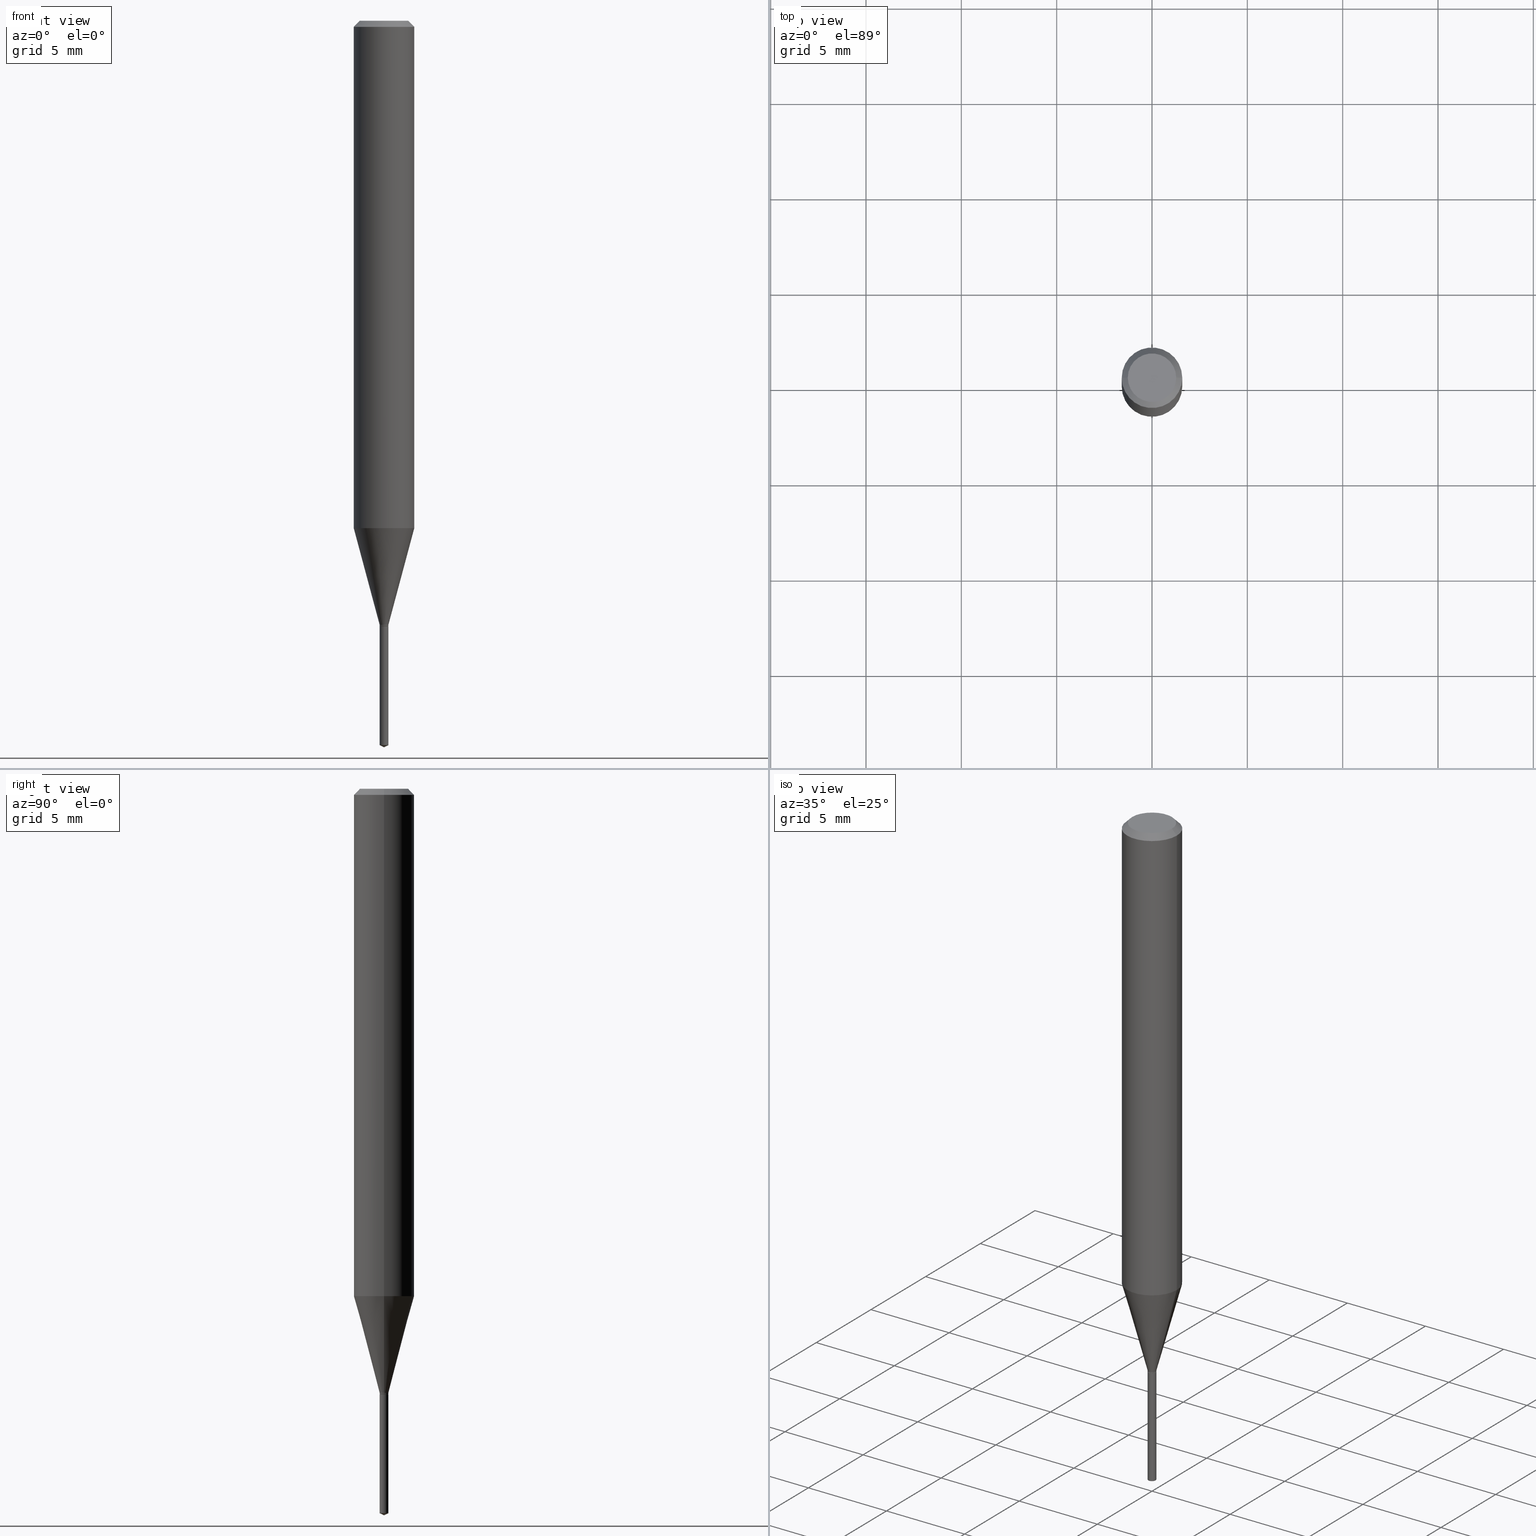
[diagram: canonical four-view strip — front | top / right | iso, engineering-drawing reading convention]
A machine part, canonical four-view strip (front | top / right | iso — engineering-drawing reading convention). The complete STEP part file that produces these views, byte-faithful:
ISO-10303-21;
HEADER;
FILE_DESCRIPTION (( 'STEP AP203' ),
    '1' );
FILE_NAME ('07288.STEP',
    '2024-04-23T20:13:42',
    ( '' ),
    ( '' ),
    'SwSTEP 2.0',
    'SolidWorks 2023',
    '' );
FILE_SCHEMA (( 'CONFIG_CONTROL_DESIGN' ));
ENDSEC;

DATA;
#1 = DIRECTION ( 'NONE',  ( -2.445468806185136877E-29, 3.491481338843145188E-15, 1.000000000000000000 ) ) ;
#2 = CARTESIAN_POINT ( 'NONE',  ( 3.056836007731421306E-29, -4.364351673553932471E-15, -1.250000000000000000 ) ) ;
#3 = APPROVAL_PERSON_ORGANIZATION ( #488, #395, #75 ) ;
#4 = CARTESIAN_POINT ( 'NONE',  ( 3.056836007731421306E-29, -4.364351673553932471E-15, -1.250000000000000000 ) ) ;
#5 = AXIS2_PLACEMENT_3D ( 'NONE', #40, #487, #441 ) ;
#6 = DIRECTION ( 'NONE',  ( -2.445468806185136597E-29, 3.491481338843145583E-15, 1.000000000000000000 ) ) ;
#7 = DIRECTION ( 'NONE',  ( -6.982962677686265133E-15, -1.000000000000000000, 0.000000000000000000 ) ) ;
#8 = ORIENTED_EDGE ( 'NONE', *, *, #24, .F. ) ;
#9 = CC_DESIGN_PERSON_AND_ORGANIZATION_ASSIGNMENT ( #287, #425, ( #81 ) ) ;
#10 = DIRECTION ( 'NONE',  ( -6.982962677686265133E-15, -1.000000000000000000, 0.000000000000000000 ) ) ;
#11 = AXIS2_PLACEMENT_3D ( 'NONE', #105, #183, #111 ) ;
#12 = ORIENTED_EDGE ( 'NONE', *, *, #159, .F. ) ;
#13 = LINE ( 'NONE', #42, #171 ) ;
#14 = ADVANCED_BREP_SHAPE_REPRESENTATION ( '07288', ( #85, #410, #437 ), #427 ) ;
#15 = PRODUCT_RELATED_PRODUCT_CATEGORY ( 'detail', '', ( #81 ) ) ;
#16 = ORIENTED_EDGE ( 'NONE', *, *, #197, .F. ) ;
#17 = CARTESIAN_POINT ( 'NONE',  ( 0.06250000000000006939, -4.364351673553921624E-16, 3.047610484872463374E-30 ) ) ;
#18 = PERSON_AND_ORGANIZATION_ROLE ( 'creator' ) ;
#19 = CARTESIAN_POINT ( 'NONE',  ( -0.06250000000000013878, -3.213709826451086703E-15, -1.047635281795065154 ) ) ;
#20 = CC_DESIGN_APPROVAL ( #301, ( #242 ) ) ;
#21 = VECTOR ( 'NONE', #94, 39.37007874015748854 ) ;
#22 = CALENDAR_DATE ( 2024, 23, 4 ) ;
#23 = ORIENTED_EDGE ( 'NONE', *, *, #24, .T. ) ;
#24 = EDGE_CURVE ( 'NONE', #99, #175, #193, .T. ) ;
#25 = ORIENTED_EDGE ( 'NONE', *, *, #118, .F. ) ;
#26 = DATE_AND_TIME ( #22, #235 ) ;
#27 = ORIENTED_EDGE ( 'NONE', *, *, #380, .T. ) ;
#28 = ORIENTED_EDGE ( 'NONE', *, *, #219, .F. ) ;
#29 = CARTESIAN_POINT ( 'NONE',  ( 2.561959401888807010E-29, -3.657799036301150108E-15, -1.047635281795065154 ) ) ;
#30 = ORIENTED_EDGE ( 'NONE', *, *, #215, .F. ) ;
#31 = VECTOR ( 'NONE', #330, 39.37007874015748854 ) ;
#32 = CONICAL_SURFACE ( 'NONE', #418, 84.42940631927278616, 1.134464013796308901 ) ;
#33 = CARTESIAN_POINT ( 'NONE',  ( 1.946643104841063088E-47, -2.779290439833033990E-33, -7.960204194457798443E-19 ) ) ;
#34 = EDGE_LOOP ( 'NONE', ( #125, #90, #27, #25 ) ) ;
#35 = DIRECTION ( 'NONE',  ( -2.445468806185136597E-29, 3.491481338843145583E-15, 1.000000000000000000 ) ) ;
#36 = EDGE_CURVE ( 'NONE', #65, #120, #333, .T. ) ;
#37 = FACE_OUTER_BOUND ( 'NONE', #128, .T. ) ;
#38 = CARTESIAN_POINT ( 'NONE',  ( -0.06250000000000006939, 4.440892098500631092E-16, -3.074334431409319267E-30 ) ) ;
#39 = ADVANCED_FACE ( 'NONE', ( #327 ), #55, .T. ) ;
#40 = CARTESIAN_POINT ( 'NONE',  ( 3.050233241954721412E-29, -4.354924673939055563E-15, -1.247300000000000075 ) ) ;
#41 = EDGE_CURVE ( 'NONE', #216, #99, #295, .T. ) ;
#42 = CARTESIAN_POINT ( 'NONE',  ( -0.009000000000000016667, 6.394884621840913516E-17, -4.427041581229423352E-31 ) ) ;
#43 = SECURITY_CLASSIFICATION ( '', '', #486 ) ;
#44 = CARTESIAN_POINT ( 'NONE',  ( 3.055613273328328505E-29, -4.362605932884510968E-15, -1.249500000000000055 ) ) ;
#45 = AXIS2_PLACEMENT_3D ( 'NONE', #398, #361, #467 ) ;
#46 = ORIENTED_EDGE ( 'NONE', *, *, #269, .F. ) ;
#47 = CARTESIAN_POINT ( 'NONE',  ( 3.657912959581434869E-29, -5.222607994353275503E-15, -1.495803231076605178 ) ) ;
#48 = EDGE_CURVE ( 'NONE', #479, #216, #210, .T. ) ;
#49 = DIRECTION ( 'NONE',  ( -2.445358220953112322E-29, 3.491639703189524906E-15, 1.000000000000000000 ) ) ;
#50 = CARTESIAN_POINT ( 'NONE',  ( 3.056836007731441415E-31, -4.364351673553961684E-17, -0.01250000000000008396 ) ) ;
#51 = AXIS2_PLACEMENT_3D ( 'NONE', #102, #130, #217 ) ;
#52 = APPLICATION_CONTEXT ( 'configuration controlled 3d designs of mechanical parts and assemblies' ) ;
#53 = DATE_AND_TIME ( #249, #221 ) ;
#54 = DIMENSIONAL_EXPONENTS ( 1.000000000000000000, 0.000000000000000000, 0.000000000000000000, 0.000000000000000000, 0.000000000000000000, 0.000000000000000000, 0.000000000000000000 ) ;
#55 = CYLINDRICAL_SURFACE ( 'NONE', #45, 0.009000000000000016667 ) ;
#56 = PERSON_AND_ORGANIZATION ( #237, #179 ) ;
#57 = DIRECTION ( 'NONE',  ( -2.445468806185136597E-29, 3.491481338843145583E-15, 1.000000000000000000 ) ) ;
#58 = EDGE_LOOP ( 'NONE', ( #356, #475, #358, #251 ) ) ;
#59 = ORIENTED_EDGE ( 'NONE', *, *, #376, .F. ) ;
#60 = DIRECTION ( 'NONE',  ( -2.445468806185136597E-29, 3.491481338843145583E-15, 1.000000000000000000 ) ) ;
#61 = ORIENTED_EDGE ( 'NONE', *, *, #389, .F. ) ;
#62 = AXIS2_PLACEMENT_3D ( 'NONE', #4, #353, #311 ) ;
#63 = PERSON_AND_ORGANIZATION ( #237, #179 ) ;
#64 = EDGE_LOOP ( 'NONE', ( #46, #354 ) ) ;
#65 = VERTEX_POINT ( 'NONE', #166 ) ;
#66 = FACE_OUTER_BOUND ( 'NONE', #411, .T. ) ;
#67 = ORIENTED_EDGE ( 'NONE', *, *, #48, .T. ) ;
#68 = DIRECTION ( 'NONE',  ( -2.445358220953112322E-29, 3.491639703189524906E-15, 1.000000000000000000 ) ) ;
#69 = EDGE_CURVE ( 'NONE', #123, #99, #440, .T. ) ;
#70 = APPROVAL_DATE_TIME ( #340, #301 ) ;
#71 = APPROVAL_PERSON_ORGANIZATION ( #63, #301, #140 ) ;
#72 = CARTESIAN_POINT ( 'NONE',  ( 6.394884621844560765E-17, 0.008999999999994779537, -1.495803231076605178 ) ) ;
#73 = PERSON_AND_ORGANIZATION_ROLE ( 'design_supplier' ) ;
#74 = CARTESIAN_POINT ( 'NONE',  ( 0.008499999999999998876, -4.423706856314265170E-15, -1.250000000000000000 ) ) ;
#75 = APPROVAL_ROLE ( '' ) ;
#76 = CARTESIAN_POINT ( 'NONE',  ( 0.008499999999999998876, -4.423706856314265170E-15, -1.250000000000000000 ) ) ;
#77 = ORIENTED_EDGE ( 'NONE', *, *, #176, .F. ) ;
#78 = CALENDAR_DATE ( 2024, 23, 4 ) ;
#79 = AXIS2_PLACEMENT_3D ( 'NONE', #152, #35, #268 ) ;
#80 = CARTESIAN_POINT ( 'NONE',  ( 3.893286209682126177E-47, -5.558580879666067980E-33, -1.592040838891559689E-18 ) ) ;
#81 = PRODUCT ( '07288', '07288', '', ( #438 ) ) ;
#82 = EDGE_CURVE ( 'NONE', #216, #120, #154, .T. ) ;
#83 = FACE_OUTER_BOUND ( 'NONE', #145, .T. ) ;
#84 = DIRECTION ( 'NONE',  ( 6.439704144417007476E-15, 0.9063077870366490485, 0.4226182617407009956 ) ) ;
#85 = MANIFOLD_SOLID_BREP ( 'Body-Move/Copy2[1]', #367 ) ;
#86 = FACE_OUTER_BOUND ( 'NONE', #212, .T. ) ;
#87 = CIRCLE ( 'NONE', #383, 0.008999999999999999320 ) ;
#88 = CARTESIAN_POINT ( 'NONE',  ( 0.009000000000000016667, -6.284666409917651971E-17, 4.388559098216350166E-31 ) ) ;
#89 = CARTESIAN_POINT ( 'NONE',  ( 3.056836007731421306E-29, -4.364351673553932471E-15, -1.250000000000000000 ) ) ;
#90 = ORIENTED_EDGE ( 'NONE', *, *, #169, .T. ) ;
#91 = VECTOR ( 'NONE', #432, 39.37007874015748854 ) ;
#92 = CARTESIAN_POINT ( 'NONE',  ( 3.056836007731441415E-31, -4.364351673553961684E-17, -0.01250000000000008396 ) ) ;
#93 = ORIENTED_EDGE ( 'NONE', *, *, #349, .T. ) ;
#94 = DIRECTION ( 'NONE',  ( -6.328713451373352024E-15, -0.9063077870366461619, 0.4226182617407073239 ) ) ;
#95 = DIRECTION ( 'NONE',  ( 1.000000000000000000, -6.982962677686266711E-15, 0.000000000000000000 ) ) ;
#96 = ORIENTED_EDGE ( 'NONE', *, *, #106, .F. ) ;
#97 = DIRECTION ( 'NONE',  ( 0.000000000000000000, 0.000000000000000000, 1.000000000000000000 ) ) ;
#98 = ADVANCED_FACE ( 'NONE', ( #404 ), #292, .T. ) ;
#99 = VERTEX_POINT ( 'NONE', #131 ) ;
#100 = APPROVAL_PERSON_ORGANIZATION ( #320, #355, #393 ) ;
#101 = ORIENTED_EDGE ( 'NONE', *, *, #352, .T. ) ;
#102 = CARTESIAN_POINT ( 'NONE',  ( 2.561959401888807010E-29, -3.657799036301150108E-15, -1.047635281795065154 ) ) ;
#103 = ORIENTED_EDGE ( 'NONE', *, *, #247, .F. ) ;
#104 = DATE_AND_TIME ( #414, #192 ) ;
#105 = CARTESIAN_POINT ( 'NONE',  ( 3.893286209682126177E-47, -5.558580879666067980E-33, -1.592040838891559689E-18 ) ) ;
#106 = EDGE_CURVE ( 'NONE', #282, #357, #286, .T. ) ;
#107 = DIRECTION ( 'NONE',  ( -1.000000000000000000, 6.982962677686266711E-15, 0.000000000000000000 ) ) ;
#108 = ORIENTED_EDGE ( 'NONE', *, *, #69, .F. ) ;
#109 = AXIS2_PLACEMENT_3D ( 'NONE', #50, #122, #276 ) ;
#110 = SHAPE_DEFINITION_REPRESENTATION ( #386, #14 ) ;
#111 = DIRECTION ( 'NONE',  ( 1.000000000000000000, -6.982962677686265922E-15, 4.875957971899673662E-29 ) ) ;
#112 = CARTESIAN_POINT ( 'NONE',  ( 0.06250000000000013878, -4.094234203656543355E-15, -1.047635281795065154 ) ) ;
#113 = PLANE ( 'NONE',  #429 ) ;
#114 = CLOSED_SHELL ( 'NONE', ( #329, #254, #98, #201, #39, #439, #308, #459, #339, #135, #313, #379 ) ) ;
#115 = CIRCLE ( 'NONE', #5, 0.009000000000000016667 ) ;
#116 = DIRECTION ( 'NONE',  ( -2.445468806185136597E-29, 3.491481338843145583E-15, 1.000000000000000000 ) ) ;
#117 = CARTESIAN_POINT ( 'NONE',  ( -0.009000000000000016667, -4.294816457193374586E-15, -1.249500000000000055 ) ) ;
#118 = EDGE_CURVE ( 'NONE', #65, #479, #149, .T. ) ;
#119 = PLANE ( 'NONE',  #338 ) ;
#120 = VERTEX_POINT ( 'NONE', #19 ) ;
#121 = CC_DESIGN_APPROVAL ( #355, ( #264 ) ) ;
#122 = DIRECTION ( 'NONE',  ( 2.445468806185136597E-29, -3.491481338843145583E-15, -1.000000000000000000 ) ) ;
#123 = VERTEX_POINT ( 'NONE', #170 ) ;
#124 = CYLINDRICAL_SURFACE ( 'NONE', #194, 0.008999999999999999320 ) ;
#125 = ORIENTED_EDGE ( 'NONE', *, *, #352, .F. ) ;
#126 = APPLICATION_CONTEXT ( 'configuration controlled 3d designs of mechanical parts and assemblies' ) ;
#127 = CARTESIAN_POINT ( 'NONE',  ( 6.394884621843956793E-17, 0.008999999999995634756, -1.250000000000000000 ) ) ;
#128 = EDGE_LOOP ( 'NONE', ( #138, #163, #402, #360 ) ) ;
#129 = ADVANCED_FACE ( 'NONE', ( #324 ), #32, .T. ) ;
#130 = DIRECTION ( 'NONE',  ( -2.445468806185136597E-29, 3.491481338843145583E-15, 1.000000000000000000 ) ) ;
#131 = CARTESIAN_POINT ( 'NONE',  ( 0.06250000000000000000, -4.800786840909313294E-16, -0.01250000000000008396 ) ) ;
#132 = AXIS2_PLACEMENT_3D ( 'NONE', #453, #224, #370 ) ;
#133 = DIRECTION ( 'NONE',  ( 1.000000000000000000, -6.982962677686266711E-15, 4.876176775795935793E-29 ) ) ;
#134 = DIRECTION ( 'NONE',  ( -2.445468806185136877E-29, 3.491481338843145188E-15, 1.000000000000000000 ) ) ;
#135 = ADVANCED_FACE ( 'NONE', ( #261 ), #113, .F. ) ;
#136 = EDGE_CURVE ( 'NONE', #288, #252, #375, .T. ) ;
#137 =( NAMED_UNIT ( * ) SI_UNIT ( $, .STERADIAN. ) SOLID_ANGLE_UNIT ( ) );
#138 = ORIENTED_EDGE ( 'NONE', *, *, #176, .T. ) ;
#139 = EDGE_LOOP ( 'NONE', ( #401, #93 ) ) ;
#140 = APPROVAL_ROLE ( '' ) ;
#141 = CARTESIAN_POINT ( 'NONE',  ( 0.009000000000000016667, -4.417771338038232847E-15, -1.247300000000000075 ) ) ;
#142 = VECTOR ( 'NONE', #239, 39.37007874015748143 ) ;
#143 = AXIS2_PLACEMENT_3D ( 'NONE', #250, #57, #207 ) ;
#144 = CARTESIAN_POINT ( 'NONE',  ( 3.668037331429668062E-29, -5.237459554784286570E-15, -1.500000000000000222 ) ) ;
#145 = EDGE_LOOP ( 'NONE', ( #61, #184, #434 ) ) ;
#146 = LINE ( 'NONE', #74, #284 ) ;
#147 = CARTESIAN_POINT ( 'NONE',  ( 3.050233241954721412E-29, -4.354924673939055563E-15, -1.247300000000000075 ) ) ;
#148 = LOCAL_TIME ( 16, 13, 42.00000000000000000, #480 ) ;
#149 = CIRCLE ( 'NONE', #143, 0.009000000000000016667 ) ;
#150 = LINE ( 'NONE', #226, #296 ) ;
#151 = DATE_TIME_ROLE ( 'classification_date' ) ;
#152 = CARTESIAN_POINT ( 'NONE',  ( 3.055613273328328505E-29, -4.362605932884510968E-15, -1.249500000000000055 ) ) ;
#153 = DIRECTION ( 'NONE',  ( -2.445358220953112322E-29, 3.491639703189524906E-15, 1.000000000000000000 ) ) ;
#154 = CIRCLE ( 'NONE', #470, 0.06250000000000012490 ) ;
#155 = CIRCLE ( 'NONE', #132, 0.008499999999999998876 ) ;
#156 = FACE_OUTER_BOUND ( 'NONE', #64, .T. ) ;
#157 = DIRECTION ( 'NONE',  ( -2.445468806185136597E-29, 3.491481338843145583E-15, 1.000000000000000000 ) ) ;
#158 = CARTESIAN_POINT ( 'NONE',  ( 6.394884621844563230E-17, 0.008999999999995636490, -1.250000000000000000 ) ) ;
#159 = EDGE_CURVE ( 'NONE', #123, #382, #256, .T. ) ;
#160 = CARTESIAN_POINT ( 'NONE',  ( 3.668316218764602717E-29, -5.237063643918339248E-15, -1.500000000000000222 ) ) ;
#161 = ORIENTED_EDGE ( 'NONE', *, *, #169, .F. ) ;
#162 = EDGE_LOOP ( 'NONE', ( #279, #174, #8, #426 ) ) ;
#163 = ORIENTED_EDGE ( 'NONE', *, *, #36, .T. ) ;
#164 = APPROVAL_DATE_TIME ( #53, #355 ) ;
#165 = VERTEX_POINT ( 'NONE', #304 ) ;
#166 = CARTESIAN_POINT ( 'NONE',  ( -0.009000000000000016667, -4.294816457193374586E-15, -1.247300000000000075 ) ) ;
#167 =( LENGTH_UNIT ( ) NAMED_UNIT ( * ) SI_UNIT ( $, .METRE. ) );
#168 = VECTOR ( 'NONE', #84, 39.37007874015748854 ) ;
#169 = EDGE_CURVE ( 'NONE', #363, #165, #230, .T. ) ;
#170 = CARTESIAN_POINT ( 'NONE',  ( 0.04999999999999999584, -4.077247707424184705E-16, -1.592040838888913461E-18 ) ) ;
#171 = VECTOR ( 'NONE', #238, 39.37007874015748143 ) ;
#172 = DIRECTION ( 'NONE',  ( -2.445468806185136597E-29, 3.491481338843145583E-15, 1.000000000000000000 ) ) ;
#173 = EDGE_LOOP ( 'NONE', ( #466, #394, #464, #443 ) ) ;
#174 = ORIENTED_EDGE ( 'NONE', *, *, #290, .T. ) ;
#175 = VERTEX_POINT ( 'NONE', #343 ) ;
#176 = EDGE_CURVE ( 'NONE', #479, #65, #115, .T. ) ;
#177 = PERSON_AND_ORGANIZATION ( #237, #179 ) ;
#178 = DIRECTION ( 'NONE',  ( 0.7071067811865453523, -7.319954787623248157E-15, -0.7071067811865496822 ) ) ;
#179 = ORGANIZATION ( 'UNSPECIFIED', 'UNSPECIFIED', '' ) ;
#180 = EDGE_LOOP ( 'NONE', ( #96, #477, #28 ) ) ;
#181 = AXIS2_PLACEMENT_3D ( 'NONE', #368, #182, #228 ) ;
#182 = DIRECTION ( 'NONE',  ( -2.445358220953112322E-29, 3.491639703189524906E-15, 1.000000000000000000 ) ) ;
#183 = DIRECTION ( 'NONE',  ( -2.445468806185136597E-29, 3.491481338843145583E-15, 1.000000000000000000 ) ) ;
#184 = ORIENTED_EDGE ( 'NONE', *, *, #106, .T. ) ;
#185 = COORDINATED_UNIVERSAL_TIME_OFFSET ( 5, 0, .BEHIND. ) ;
#186 = DIRECTION ( 'NONE',  ( -0.7071067811866320607, 7.493145998870660238E-15, 0.7071067811864629737 ) ) ;
#187 = VECTOR ( 'NONE', #385, 39.37007874015748143 ) ;
#188 = DIRECTION ( 'NONE',  ( 1.000000000000000000, -6.982962677686265922E-15, 4.875957971899673662E-29 ) ) ;
#189 = CARTESIAN_POINT ( 'NONE',  ( -6.284666409914582809E-17, -0.009000000000004363884, -1.250000000000000000 ) ) ;
#190 = CC_DESIGN_DATE_AND_TIME_ASSIGNMENT ( #26, #253, ( #264 ) ) ;
#191 = CARTESIAN_POINT ( 'NONE',  ( 0.000000000000000000, 0.000000000000000000, 0.000000000000000000 ) ) ;
#192 = LOCAL_TIME ( 16, 13, 42.00000000000000000, #185 ) ;
#193 = CIRCLE ( 'NONE', #455, 0.06250000000000000000 ) ;
#194 = AXIS2_PLACEMENT_3D ( 'NONE', #89, #241, #7 ) ;
#195 = CARTESIAN_POINT ( 'NONE',  ( -9.260577014384575703E-28, 1.322288684474803865E-13, 37.87007874015748143 ) ) ;
#196 = CARTESIAN_POINT ( 'NONE',  ( -0.06250000000000000000, 3.927916506198520587E-16, -0.01250000000000008396 ) ) ;
#197 = EDGE_CURVE ( 'NONE', #209, #371, #448, .T. ) ;
#198 = ORIENTED_EDGE ( 'NONE', *, *, #376, .T. ) ;
#199 = CARTESIAN_POINT ( 'NONE',  ( -0.04999999999999999584, 3.709698922520826725E-16, -1.592040838894077649E-18 ) ) ;
#200 = ORIENTED_EDGE ( 'NONE', *, *, #159, .T. ) ;
#201 = ADVANCED_FACE ( 'NONE', ( #37 ), #346, .T. ) ;
#202 = CARTESIAN_POINT ( 'NONE',  ( 3.050233241954721412E-29, -4.354924673939055563E-15, -1.247300000000000075 ) ) ;
#203 = AXIS2_PLACEMENT_3D ( 'NONE', #80, #449, #188 ) ;
#204 = ORIENTED_EDGE ( 'NONE', *, *, #206, .T. ) ;
#205 = ORIENTED_EDGE ( 'NONE', *, *, #36, .F. ) ;
#206 = EDGE_CURVE ( 'NONE', #382, #123, #390, .T. ) ;
#207 = DIRECTION ( 'NONE',  ( 1.000000000000000000, -6.982962677686320353E-15, 0.000000000000000000 ) ) ;
#208 = CARTESIAN_POINT ( 'NONE',  ( 0.000000000000000000, 0.000000000000000000, 0.000000000000000000 ) ) ;
#209 = VERTEX_POINT ( 'NONE', #189 ) ;
#210 = LINE ( 'NONE', #141, #91 ) ;
#211 = CONICAL_SURFACE ( 'NONE', #369, 0.06250000000000000000, 0.7853981633974452814 ) ;
#212 = EDGE_LOOP ( 'NONE', ( #289, #428, #16, #30 ) ) ;
#213 = APPROVAL_STATUS ( 'not_yet_approved' ) ;
#214 = EDGE_LOOP ( 'NONE', ( #12, #300, #23, #59 ) ) ;
#215 = EDGE_CURVE ( 'NONE', #357, #209, #302, .T. ) ;
#216 = VERTEX_POINT ( 'NONE', #112 ) ;
#217 = DIRECTION ( 'NONE',  ( 1.000000000000000000, -6.982962677686264344E-15, 0.000000000000000000 ) ) ;
#218 = DIRECTION ( 'NONE',  ( -2.445468806185136597E-29, 3.491481338843145583E-15, 1.000000000000000000 ) ) ;
#219 = EDGE_CURVE ( 'NONE', #357, #244, #245, .T. ) ;
#220 = FACE_OUTER_BOUND ( 'NONE', #173, .T. ) ;
#221 = LOCAL_TIME ( 16, 13, 42.00000000000000000, #433 ) ;
#222 = VECTOR ( 'NONE', #412, 39.37007874015748143 ) ;
#223 = AXIS2_PLACEMENT_3D ( 'NONE', #47, #387, #420 ) ;
#224 = DIRECTION ( 'NONE',  ( -2.445468806185136597E-29, 3.491481338843145583E-15, 1.000000000000000000 ) ) ;
#225 = ADVANCED_FACE ( 'NONE', ( #220 ), #409, .T. ) ;
#226 = CARTESIAN_POINT ( 'NONE',  ( -0.008499999999999998876, -4.303955541014323507E-15, -1.250000000000000000 ) ) ;
#227 = EDGE_CURVE ( 'NONE', #252, #165, #146, .T. ) ;
#228 = DIRECTION ( 'NONE',  ( -6.982962677686265133E-15, -1.000000000000000000, 0.000000000000000000 ) ) ;
#229 = AXIS2_PLACEMENT_3D ( 'NONE', #208, #172, #476 ) ;
#230 = CIRCLE ( 'NONE', #79, 0.009000000000000016667 ) ;
#231 = DATE_AND_TIME ( #78, #347 ) ;
#232 = DIRECTION ( 'NONE',  ( -6.982962677686265133E-15, -1.000000000000000000, 0.000000000000000000 ) ) ;
#233 = FACE_OUTER_BOUND ( 'NONE', #58, .T. ) ;
#234 = DIRECTION ( 'NONE',  ( 1.000000000000000000, -6.982962677686219379E-15, 0.000000000000000000 ) ) ;
#235 = LOCAL_TIME ( 16, 13, 42.00000000000000000, #322 ) ;
#236 = CIRCLE ( 'NONE', #223, 0.009000000000000001055 ) ;
#237 = PERSON ( 'UNSPECIFIED', 'UNSPECIFIED', 'UNSPECIFIED', ('UNSPECIFIED'), ('UNSPECIFIED'), ('UNSPECIFIED') ) ;
#238 = DIRECTION ( 'NONE',  ( -2.445468806185136877E-29, 3.491481338843145188E-15, 1.000000000000000000 ) ) ;
#239 = DIRECTION ( 'NONE',  ( -2.445468806185136877E-29, 3.491481338843145188E-15, 1.000000000000000000 ) ) ;
#240 = EDGE_LOOP ( 'NONE', ( #205, #277, #67, #293 ) ) ;
#241 = DIRECTION ( 'NONE',  ( -2.445358220953112322E-29, 3.491639703189524906E-15, 1.000000000000000000 ) ) ;
#242 = PRODUCT_DEFINITION_FORMATION_WITH_SPECIFIED_SOURCE ( 'ANY', '', #81, .NOT_KNOWN. ) ;
#243 =( NAMED_UNIT ( * ) PLANE_ANGLE_UNIT ( ) SI_UNIT ( $, .RADIAN. ) );
#244 = VERTEX_POINT ( 'NONE', #72 ) ;
#245 = CIRCLE ( 'NONE', #422, 0.009000000000000001055 ) ;
#246 = ORIENTED_EDGE ( 'NONE', *, *, #469, .T. ) ;
#247 = EDGE_CURVE ( 'NONE', #288, #363, #150, .T. ) ;
#248 = ORIENTED_EDGE ( 'NONE', *, *, #397, .T. ) ;
#249 = CALENDAR_DATE ( 2024, 23, 4 ) ;
#250 = CARTESIAN_POINT ( 'NONE',  ( 3.050233241954721412E-29, -4.354924673939055563E-15, -1.247300000000000075 ) ) ;
#251 = ORIENTED_EDGE ( 'NONE', *, *, #227, .F. ) ;
#252 = VERTEX_POINT ( 'NONE', #76 ) ;
#253 = DATE_TIME_ROLE ( 'creation_date' ) ;
#254 = ADVANCED_FACE ( 'NONE', ( #341 ), #211, .T. ) ;
#255 = ORIENTED_EDGE ( 'NONE', *, *, #227, .T. ) ;
#256 = CIRCLE ( 'NONE', #203, 0.04999999999999999584 ) ;
#257 = APPLICATION_PROTOCOL_DEFINITION ( 'international standard', 'config_control_design', 1994, #52 ) ;
#258 = DIRECTION ( 'NONE',  ( 1.000000000000000000, -6.982962677686264344E-15, 0.000000000000000000 ) ) ;
#259 = ORIENTED_EDGE ( 'NONE', *, *, #450, .T. ) ;
#260 = DIRECTION ( 'NONE',  ( 2.438088387897960049E-29, -3.491481338843145188E-15, -1.000000000000000000 ) ) ;
#261 = FACE_OUTER_BOUND ( 'NONE', #328, .T. ) ;
#262 = CIRCLE ( 'NONE', #331, 0.009000000000000016667 ) ;
#263 = AXIS2_PLACEMENT_3D ( 'NONE', #423, #6, #234 ) ;
#264 = PRODUCT_DEFINITION ( 'UNKNOWN', '', #242, #325 ) ;
#265 = DIRECTION ( 'NONE',  ( 1.000000000000000000, -6.982962677686219379E-15, 0.000000000000000000 ) ) ;
#266 = PERSON_AND_ORGANIZATION ( #237, #179 ) ;
#267 = DIRECTION ( 'NONE',  ( -2.445468806185136597E-29, 3.491481338843145583E-15, 1.000000000000000000 ) ) ;
#268 = DIRECTION ( 'NONE',  ( 1.000000000000000000, -6.982962677686265922E-15, 0.000000000000000000 ) ) ;
#269 = EDGE_CURVE ( 'NONE', #252, #288, #155, .T. ) ;
#270 = FACE_OUTER_BOUND ( 'NONE', #446, .T. ) ;
#271 = CC_DESIGN_PERSON_AND_ORGANIZATION_ASSIGNMENT ( #266, #405, ( #43 ) ) ;
#272 = LINE ( 'NONE', #88, #142 ) ;
#273 = CARTESIAN_POINT ( 'NONE',  ( 3.056836007731421306E-29, -4.364351673553932471E-15, -1.250000000000000000 ) ) ;
#274 = CIRCLE ( 'NONE', #51, 0.06250000000000012490 ) ;
#275 = AXIS2_PLACEMENT_3D ( 'NONE', #195, #49, #384 ) ;
#276 = DIRECTION ( 'NONE',  ( -1.000000000000000000, 6.982962677686266711E-15, 0.000000000000000000 ) ) ;
#277 = ORIENTED_EDGE ( 'NONE', *, *, #118, .T. ) ;
#278 = FACE_OUTER_BOUND ( 'NONE', #240, .T. ) ;
#279 = ORIENTED_EDGE ( 'NONE', *, *, #82, .T. ) ;
#280 = UNCERTAINTY_MEASURE_WITH_UNIT (LENGTH_MEASURE( 1.000000000000000082E-05 ), #281, 'distance_accuracy_value', 'NONE');
#281 =( CONVERSION_BASED_UNIT ( 'INCH', #465 ) LENGTH_UNIT ( ) NAMED_UNIT ( #54 ) );
#282 = VERTEX_POINT ( 'NONE', #306 ) ;
#283 = CC_DESIGN_DATE_AND_TIME_ASSIGNMENT ( #231, #151, ( #43 ) ) ;
#284 = VECTOR ( 'NONE', #298, 39.37007874015748143 ) ;
#285 = AXIS2_PLACEMENT_3D ( 'NONE', #315, #116, #460 ) ;
#286 = LINE ( 'NONE', #144, #21 ) ;
#287 = PERSON_AND_ORGANIZATION ( #237, #179 ) ;
#288 = VERTEX_POINT ( 'NONE', #337 ) ;
#289 = ORIENTED_EDGE ( 'NONE', *, *, #219, .T. ) ;
#290 = EDGE_CURVE ( 'NONE', #120, #175, #490, .T. ) ;
#291 = DIRECTION ( 'NONE',  ( -2.445468806185136597E-29, 3.491481338843145583E-15, 1.000000000000000000 ) ) ;
#292 = CYLINDRICAL_SURFACE ( 'NONE', #456, 0.06250000000000006939 ) ;
#293 = ORIENTED_EDGE ( 'NONE', *, *, #469, .F. ) ;
#294 = CC_DESIGN_SECURITY_CLASSIFICATION ( #43, ( #242 ) ) ;
#295 = LINE ( 'NONE', #17, #309 ) ;
#296 = VECTOR ( 'NONE', #186, 39.37007874015748143 ) ;
#297 = DIRECTION ( 'NONE',  ( -2.445468806185136597E-29, 3.491481338843145583E-15, 1.000000000000000000 ) ) ;
#298 = DIRECTION ( 'NONE',  ( 0.7071067811866320607, -2.468850131083142557E-15, 0.7071067811864629737 ) ) ;
#299 = ADVANCED_FACE ( 'NONE', ( #83 ), #316, .T. ) ;
#300 = ORIENTED_EDGE ( 'NONE', *, *, #69, .T. ) ;
#301 = APPROVAL ( #213, 'UNSPECIFIED' ) ;
#302 = LINE ( 'NONE', #336, #222 ) ;
#303 = AXIS2_PLACEMENT_3D ( 'NONE', #2, #153, #232 ) ;
#304 = CARTESIAN_POINT ( 'NONE',  ( 0.009000000000000016667, -4.425452596983687463E-15, -1.249500000000000055 ) ) ;
#305 = APPROVAL_STATUS ( 'not_yet_approved' ) ;
#306 = CARTESIAN_POINT ( 'NONE',  ( 3.668037331429668622E-29, -5.237459554784287358E-15, -1.500000000000000222 ) ) ;
#307 = LINE ( 'NONE', #196, #187 ) ;
#308 = ADVANCED_FACE ( 'NONE', ( #278 ), #471, .T. ) ;
#309 = VECTOR ( 'NONE', #134, 39.37007874015748143 ) ;
#310 = AXIS2_PLACEMENT_3D ( 'NONE', #147, #415, #374 ) ;
#311 = DIRECTION ( 'NONE',  ( 6.982962677686265922E-15, 1.000000000000000000, -3.491639703189525300E-15 ) ) ;
#312 = FACE_OUTER_BOUND ( 'NONE', #139, .T. ) ;
#313 = ADVANCED_FACE ( 'NONE', ( #156 ), #119, .F. ) ;
#314 = ADVANCED_FACE ( 'NONE', ( #86 ), #124, .T. ) ;
#315 = CARTESIAN_POINT ( 'NONE',  ( 3.056836007731421306E-29, -4.364351673553932471E-15, -1.250000000000000000 ) ) ;
#316 = CONICAL_SURFACE ( 'NONE', #275, 84.42940631927278616, 1.134464013796308901 ) ;
#317 = CYLINDRICAL_SURFACE ( 'NONE', #388, 0.009000000000000016667 ) ;
#318 = APPLICATION_PROTOCOL_DEFINITION ( 'international standard', 'config_control_design', 1994, #126 ) ;
#319 = ORIENTED_EDGE ( 'NONE', *, *, #136, .T. ) ;
#320 = PERSON_AND_ORGANIZATION ( #237, #179 ) ;
#321 = DIRECTION ( 'NONE',  ( 1.000000000000000000, -6.982962677686266711E-15, 4.876176775795935793E-29 ) ) ;
#322 = COORDINATED_UNIVERSAL_TIME_OFFSET ( 5, 0, .BEHIND. ) ;
#323 = CONICAL_SURFACE ( 'NONE', #109, 0.06250000000000000000, 0.7853981633974452814 ) ;
#324 = FACE_OUTER_BOUND ( 'NONE', #180, .T. ) ;
#325 = DESIGN_CONTEXT ( 'detailed design', #52, 'design' ) ;
#326 = CYLINDRICAL_SURFACE ( 'NONE', #229, 0.06250000000000006939 ) ;
#327 = FACE_OUTER_BOUND ( 'NONE', #482, .T. ) ;
#328 = EDGE_LOOP ( 'NONE', ( #204, #200 ) ) ;
#329 = ADVANCED_FACE ( 'NONE', ( #233 ), #489, .T. ) ;
#330 = DIRECTION ( 'NONE',  ( -0.2588190451025211836, 5.211531920934547886E-15, 0.9659258262890679791 ) ) ;
#331 = AXIS2_PLACEMENT_3D ( 'NONE', #44, #157, #458 ) ;
#332 = PERSON_AND_ORGANIZATION ( #237, #179 ) ;
#333 = LINE ( 'NONE', #365, #31 ) ;
#334 = DIRECTION ( 'NONE',  ( -6.982962677686268288E-15, -1.000000000000000000, 3.520397390770518557E-15 ) ) ;
#335 = EDGE_CURVE ( 'NONE', #244, #357, #236, .T. ) ;
#336 = CARTESIAN_POINT ( 'NONE',  ( -6.284666409914582809E-17, -0.009000000000004363884, -1.250000000000000000 ) ) ;
#337 = CARTESIAN_POINT ( 'NONE',  ( -0.008499999999999998876, -4.301306313840213095E-15, -1.250000000000000000 ) ) ;
#338 = AXIS2_PLACEMENT_3D ( 'NONE', #273, #350, #419 ) ;
#339 = ADVANCED_FACE ( 'NONE', ( #270 ), #323, .T. ) ;
#340 = DATE_AND_TIME ( #403, #148 ) ;
#341 = FACE_OUTER_BOUND ( 'NONE', #214, .T. ) ;
#342 = ADVANCED_FACE ( 'NONE', ( #312 ), #344, .F. ) ;
#343 = CARTESIAN_POINT ( 'NONE',  ( -0.06250000000000000000, -1.406632066668281035E-15, -0.01250000000000008396 ) ) ;
#344 = PLANE ( 'NONE',  #62 ) ;
#345 = VECTOR ( 'NONE', #178, 39.37007874015748143 ) ;
#346 = CONICAL_SURFACE ( 'NONE', #310, 0.009000000000000016667, 0.2617993877991499074 ) ;
#347 = LOCAL_TIME ( 16, 13, 42.00000000000000000, #416 ) ;
#348 = DIRECTION ( 'NONE',  ( 1.000000000000000000, -6.982962677686320353E-15, 0.000000000000000000 ) ) ;
#349 = EDGE_CURVE ( 'NONE', #371, #209, #87, .T. ) ;
#350 = DIRECTION ( 'NONE',  ( -2.438088387897960049E-29, 3.491481338843145188E-15, 1.000000000000000000 ) ) ;
#351 = LINE ( 'NONE', #160, #168 ) ;
#352 = EDGE_CURVE ( 'NONE', #363, #65, #13, .T. ) ;
#353 = DIRECTION ( 'NONE',  ( 2.445358220953111761E-29, -3.491639703189525300E-15, -1.000000000000000000 ) ) ;
#354 = ORIENTED_EDGE ( 'NONE', *, *, #136, .F. ) ;
#355 = APPROVAL ( #391, 'UNSPECIFIED' ) ;
#356 = ORIENTED_EDGE ( 'NONE', *, *, #269, .T. ) ;
#357 = VERTEX_POINT ( 'NONE', #457 ) ;
#358 = ORIENTED_EDGE ( 'NONE', *, *, #397, .F. ) ;
#359 = AXIS2_PLACEMENT_3D ( 'NONE', #452, #267, #265 ) ;
#360 = ORIENTED_EDGE ( 'NONE', *, *, #48, .F. ) ;
#361 = DIRECTION ( 'NONE',  ( -2.445468806185136597E-29, 3.491481338843145583E-15, 1.000000000000000000 ) ) ;
#362 = ORIENTED_EDGE ( 'NONE', *, *, #290, .F. ) ;
#363 = VERTEX_POINT ( 'NONE', #117 ) ;
#364 = CARTESIAN_POINT ( 'NONE',  ( 0.009000000000000016667, -4.417771338038232847E-15, -1.247300000000000075 ) ) ;
#365 = CARTESIAN_POINT ( 'NONE',  ( -0.009000000000000016667, -4.290975827720646490E-15, -1.247300000000000075 ) ) ;
#366 = CC_DESIGN_PERSON_AND_ORGANIZATION_ASSIGNMENT ( #177, #444, ( #242 ) ) ;
#367 = CLOSED_SHELL ( 'NONE', ( #314, #129, #299, #225, #342 ) ) ;
#368 = CARTESIAN_POINT ( 'NONE',  ( 3.056836007731421306E-29, -4.364351673553932471E-15, -1.250000000000000000 ) ) ;
#369 = AXIS2_PLACEMENT_3D ( 'NONE', #417, #445, #107 ) ;
#370 = DIRECTION ( 'NONE',  ( 1.000000000000000000, -6.982962677686219379E-15, 0.000000000000000000 ) ) ;
#371 = VERTEX_POINT ( 'NONE', #158 ) ;
#372 = DIRECTION ( 'NONE',  ( -2.445358220953112322E-29, 3.491639703189524906E-15, 1.000000000000000000 ) ) ;
#373 = APPROVAL_DATE_TIME ( #104, #395 ) ;
#374 = DIRECTION ( 'NONE',  ( 1.000000000000000000, -6.982962677686320353E-15, 0.000000000000000000 ) ) ;
#375 = CIRCLE ( 'NONE', #359, 0.008499999999999998876 ) ;
#376 = EDGE_CURVE ( 'NONE', #382, #175, #307, .T. ) ;
#377 = DIRECTION ( 'NONE',  ( -6.982962677686265133E-15, -1.000000000000000000, 0.000000000000000000 ) ) ;
#378 = DIRECTION ( 'NONE',  ( -2.445358220953112322E-29, 3.491639703189524906E-15, 1.000000000000000000 ) ) ;
#379 = ADVANCED_FACE ( 'NONE', ( #454 ), #468, .T. ) ;
#380 = EDGE_CURVE ( 'NONE', #165, #479, #272, .T. ) ;
#381 = FACE_OUTER_BOUND ( 'NONE', #34, .T. ) ;
#382 = VERTEX_POINT ( 'NONE', #199 ) ;
#383 = AXIS2_PLACEMENT_3D ( 'NONE', #421, #378, #10 ) ;
#384 = DIRECTION ( 'NONE',  ( -6.982962677686268288E-15, -1.000000000000000000, 3.520397390770518557E-15 ) ) ;
#385 = DIRECTION ( 'NONE',  ( -0.7071067811865453523, 2.468850131082234184E-15, -0.7071067811865496822 ) ) ;
#386 = PRODUCT_DEFINITION_SHAPE ( 'NONE', 'NONE',  #264 ) ;
#387 = DIRECTION ( 'NONE',  ( -2.445358220953112322E-29, 3.491639703189524906E-15, 1.000000000000000000 ) ) ;
#388 = AXIS2_PLACEMENT_3D ( 'NONE', #191, #463, #133 ) ;
#389 = EDGE_CURVE ( 'NONE', #282, #244, #351, .T. ) ;
#390 = CIRCLE ( 'NONE', #11, 0.04999999999999999584 ) ;
#391 = APPROVAL_STATUS ( 'not_yet_approved' ) ;
#392 = DIRECTION ( 'NONE',  ( 1.000000000000000000, -6.982962677686266711E-15, 0.000000000000000000 ) ) ;
#393 = APPROVAL_ROLE ( '' ) ;
#394 = ORIENTED_EDGE ( 'NONE', *, *, #335, .T. ) ;
#395 = APPROVAL ( #305, 'UNSPECIFIED' ) ;
#396 = CARTESIAN_POINT ( 'NONE',  ( 0.000000000000000000, 0.000000000000000000, 0.000000000000000000 ) ) ;
#397 = EDGE_CURVE ( 'NONE', #165, #363, #262, .T. ) ;
#398 = CARTESIAN_POINT ( 'NONE',  ( 0.000000000000000000, 0.000000000000000000, 0.000000000000000000 ) ) ;
#399 = CC_DESIGN_APPROVAL ( #395, ( #43 ) ) ;
#400 = DIRECTION ( 'NONE',  ( 1.000000000000000000, 0.000000000000000000, 0.000000000000000000 ) ) ;
#401 = ORIENTED_EDGE ( 'NONE', *, *, #197, .T. ) ;
#402 = ORIENTED_EDGE ( 'NONE', *, *, #82, .F. ) ;
#403 = CALENDAR_DATE ( 2024, 23, 4 ) ;
#404 = FACE_OUTER_BOUND ( 'NONE', #162, .T. ) ;
#405 = PERSON_AND_ORGANIZATION_ROLE ( 'classification_officer' ) ;
#406 = CARTESIAN_POINT ( 'NONE',  ( 3.657912959581434869E-29, -5.222607994353275503E-15, -1.495803231076605178 ) ) ;
#407 = VECTOR ( 'NONE', #472, 39.37007874015748143 ) ;
#408 = VECTOR ( 'NONE', #1, 39.37007874015748143 ) ;
#409 = CYLINDRICAL_SURFACE ( 'NONE', #181, 0.008999999999999999320 ) ;
#410 = MANIFOLD_SOLID_BREP ( 'Body-Move/Copy2[2]', #114 ) ;
#411 = EDGE_LOOP ( 'NONE', ( #362, #246, #481, #413 ) ) ;
#412 = DIRECTION ( 'NONE',  ( -2.445358220953112322E-29, 3.491639703189525300E-15, 1.000000000000000000 ) ) ;
#413 = ORIENTED_EDGE ( 'NONE', *, *, #450, .F. ) ;
#414 = CALENDAR_DATE ( 2024, 23, 4 ) ;
#415 = DIRECTION ( 'NONE',  ( -2.445468806185136597E-29, 3.491481338843145583E-15, 1.000000000000000000 ) ) ;
#416 = COORDINATED_UNIVERSAL_TIME_OFFSET ( 5, 0, .BEHIND. ) ;
#417 = CARTESIAN_POINT ( 'NONE',  ( 3.056836007731441415E-31, -4.364351673553961684E-17, -0.01250000000000008396 ) ) ;
#418 = AXIS2_PLACEMENT_3D ( 'NONE', #474, #372, #334 ) ;
#419 = DIRECTION ( 'NONE',  ( 1.000000000000000000, -6.982962677686265922E-15, 4.876176775795935793E-29 ) ) ;
#420 = DIRECTION ( 'NONE',  ( -6.982962677686265133E-15, -1.000000000000000000, 0.000000000000000000 ) ) ;
#421 = CARTESIAN_POINT ( 'NONE',  ( 3.056836007731421306E-29, -4.364351673553932471E-15, -1.250000000000000000 ) ) ;
#422 = AXIS2_PLACEMENT_3D ( 'NONE', #406, #68, #377 ) ;
#423 = CARTESIAN_POINT ( 'NONE',  ( 3.056836007731421306E-29, -4.364351673553932471E-15, -1.250000000000000000 ) ) ;
#424 = DIRECTION ( 'NONE',  ( -2.445468806185136597E-29, 3.491481338843145583E-15, 1.000000000000000000 ) ) ;
#425 = PERSON_AND_ORGANIZATION_ROLE ( 'design_owner' ) ;
#426 = ORIENTED_EDGE ( 'NONE', *, *, #41, .F. ) ;
#427 =( GEOMETRIC_REPRESENTATION_CONTEXT ( 3 ) GLOBAL_UNCERTAINTY_ASSIGNED_CONTEXT ( ( #280 ) ) GLOBAL_UNIT_ASSIGNED_CONTEXT ( ( #281, #243, #137 ) ) REPRESENTATION_CONTEXT ( 'NONE', 'WORKASPACE' ) );
#428 = ORIENTED_EDGE ( 'NONE', *, *, #442, .T. ) ;
#429 = AXIS2_PLACEMENT_3D ( 'NONE', #33, #260, #485 ) ;
#430 = AXIS2_PLACEMENT_3D ( 'NONE', #202, #424, #348 ) ;
#431 = LINE ( 'NONE', #127, #407 ) ;
#432 = DIRECTION ( 'NONE',  ( 0.2588190451025211836, 1.565188264969622559E-15, 0.9659258262890679791 ) ) ;
#433 = COORDINATED_UNIVERSAL_TIME_OFFSET ( 5, 0, .BEHIND. ) ;
#434 = ORIENTED_EDGE ( 'NONE', *, *, #335, .F. ) ;
#435 = CARTESIAN_POINT ( 'NONE',  ( 3.056836007731441415E-31, -4.364351673553961684E-17, -0.01250000000000008396 ) ) ;
#436 = ORIENTED_EDGE ( 'NONE', *, *, #206, .F. ) ;
#437 = AXIS2_PLACEMENT_3D ( 'NONE', #396, #97, #400 ) ;
#438 = MECHANICAL_CONTEXT ( 'NONE', #126, 'mechanical' ) ;
#439 = ADVANCED_FACE ( 'NONE', ( #381 ), #317, .T. ) ;
#440 = LINE ( 'NONE', #478, #345 ) ;
#441 = DIRECTION ( 'NONE',  ( 1.000000000000000000, -6.982962677686320353E-15, 0.000000000000000000 ) ) ;
#442 = EDGE_CURVE ( 'NONE', #244, #371, #431, .T. ) ;
#443 = ORIENTED_EDGE ( 'NONE', *, *, #349, .F. ) ;
#444 = PERSON_AND_ORGANIZATION_ROLE ( 'creator' ) ;
#445 = DIRECTION ( 'NONE',  ( 2.445468806185136597E-29, -3.491481338843145583E-15, -1.000000000000000000 ) ) ;
#446 = EDGE_LOOP ( 'NONE', ( #108, #436, #198, #259 ) ) ;
#447 = AXIS2_PLACEMENT_3D ( 'NONE', #92, #291, #95 ) ;
#448 = CIRCLE ( 'NONE', #303, 0.008999999999999999320 ) ;
#449 = DIRECTION ( 'NONE',  ( -2.445468806185136597E-29, 3.491481338843145583E-15, 1.000000000000000000 ) ) ;
#450 = EDGE_CURVE ( 'NONE', #175, #99, #461, .T. ) ;
#451 = CC_DESIGN_PERSON_AND_ORGANIZATION_ASSIGNMENT ( #56, #18, ( #264 ) ) ;
#452 = CARTESIAN_POINT ( 'NONE',  ( 3.056836007731421306E-29, -4.364351673553932471E-15, -1.250000000000000000 ) ) ;
#453 = CARTESIAN_POINT ( 'NONE',  ( 3.056836007731421306E-29, -4.364351673553932471E-15, -1.250000000000000000 ) ) ;
#454 = FACE_OUTER_BOUND ( 'NONE', #473, .T. ) ;
#455 = AXIS2_PLACEMENT_3D ( 'NONE', #435, #218, #392 ) ;
#456 = AXIS2_PLACEMENT_3D ( 'NONE', #484, #297, #321 ) ;
#457 = CARTESIAN_POINT ( 'NONE',  ( -6.284666409913983768E-17, -0.009000000000005224307, -1.495803231076605178 ) ) ;
#458 = DIRECTION ( 'NONE',  ( 1.000000000000000000, -6.982962677686265922E-15, 0.000000000000000000 ) ) ;
#459 = ADVANCED_FACE ( 'NONE', ( #66 ), #326, .T. ) ;
#460 = DIRECTION ( 'NONE',  ( 1.000000000000000000, -6.982962677686219379E-15, 0.000000000000000000 ) ) ;
#461 = CIRCLE ( 'NONE', #447, 0.06250000000000000000 ) ;
#462 = ORIENTED_EDGE ( 'NONE', *, *, #380, .F. ) ;
#463 = DIRECTION ( 'NONE',  ( -2.445468806185136597E-29, 3.491481338843145583E-15, 1.000000000000000000 ) ) ;
#464 = ORIENTED_EDGE ( 'NONE', *, *, #215, .T. ) ;
#465 = LENGTH_MEASURE_WITH_UNIT ( LENGTH_MEASURE( 0.02539999999999999897 ), #167 );
#466 = ORIENTED_EDGE ( 'NONE', *, *, #442, .F. ) ;
#467 = DIRECTION ( 'NONE',  ( 1.000000000000000000, -6.982962677686266711E-15, 4.876176775795935793E-29 ) ) ;
#468 = CONICAL_SURFACE ( 'NONE', #285, 0.008499999999999998876, 0.7853981633975678500 ) ;
#469 = EDGE_CURVE ( 'NONE', #120, #216, #274, .T. ) ;
#470 = AXIS2_PLACEMENT_3D ( 'NONE', #29, #60, #258 ) ;
#471 = CONICAL_SURFACE ( 'NONE', #430, 0.009000000000000016667, 0.2617993877991499074 ) ;
#472 = DIRECTION ( 'NONE',  ( -2.445358220953112322E-29, 3.491639703189525300E-15, 1.000000000000000000 ) ) ;
#473 = EDGE_LOOP ( 'NONE', ( #103, #319, #255, #161 ) ) ;
#474 = CARTESIAN_POINT ( 'NONE',  ( -9.260577014384575703E-28, 1.322288684474803865E-13, 37.87007874015748143 ) ) ;
#475 = ORIENTED_EDGE ( 'NONE', *, *, #247, .T. ) ;
#476 = DIRECTION ( 'NONE',  ( 1.000000000000000000, -6.982962677686266711E-15, 4.876176775795935793E-29 ) ) ;
#477 = ORIENTED_EDGE ( 'NONE', *, *, #389, .T. ) ;
#478 = CARTESIAN_POINT ( 'NONE',  ( 0.06250000000000000000, -4.724246415962603826E-16, -0.01250000000000008396 ) ) ;
#479 = VERTEX_POINT ( 'NONE', #364 ) ;
#480 = COORDINATED_UNIVERSAL_TIME_OFFSET ( 5, 0, .BEHIND. ) ;
#481 = ORIENTED_EDGE ( 'NONE', *, *, #41, .T. ) ;
#482 = EDGE_LOOP ( 'NONE', ( #248, #101, #77, #462 ) ) ;
#483 = CC_DESIGN_PERSON_AND_ORGANIZATION_ASSIGNMENT ( #332, #73, ( #242 ) ) ;
#484 = CARTESIAN_POINT ( 'NONE',  ( 0.000000000000000000, 0.000000000000000000, 0.000000000000000000 ) ) ;
#485 = DIRECTION ( 'NONE',  ( -1.000000000000000000, 6.982962677686265922E-15, -4.876176775795935793E-29 ) ) ;
#486 = SECURITY_CLASSIFICATION_LEVEL ( 'unclassified' ) ;
#487 = DIRECTION ( 'NONE',  ( -2.445468806185136597E-29, 3.491481338843145583E-15, 1.000000000000000000 ) ) ;
#488 = PERSON_AND_ORGANIZATION ( #237, #179 ) ;
#489 = CONICAL_SURFACE ( 'NONE', #263, 0.008499999999999998876, 0.7853981633975678500 ) ;
#490 = LINE ( 'NONE', #38, #408 ) ;
ENDSEC;
END-ISO-10303-21;
